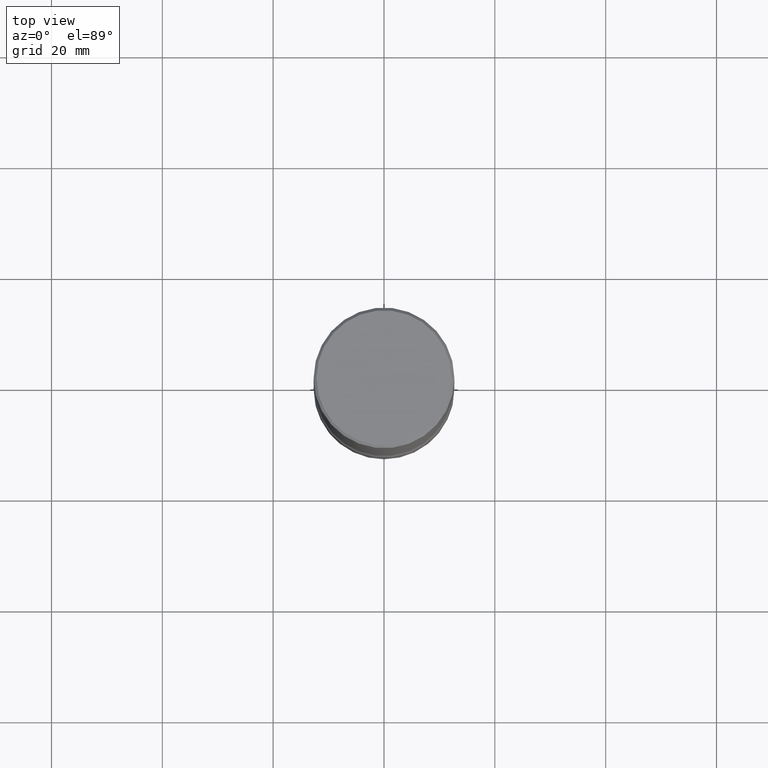
[diagram: clean part render]
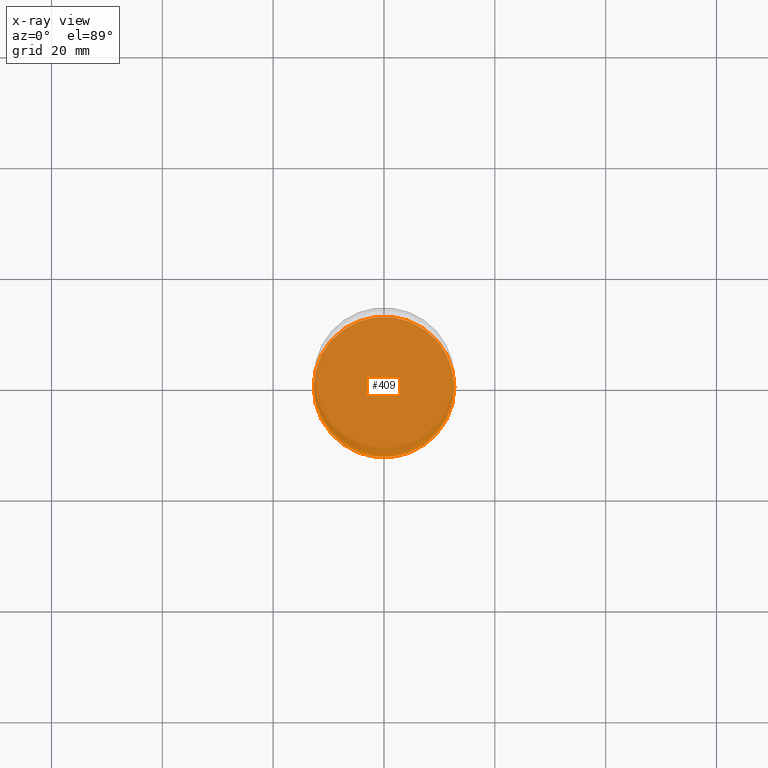
[diagram: x-ray — body ghosted, one internal face saturated and labeled with its STEP entity id]
A machine part, top view, then the same camera in x-ray: the body is ghosted and one INTERNAL B-rep face — a face not visible from any outside direction — is saturated and labeled: STEP entity #409.
In plain terms, the highlighted planar face has unit normal (0, -0, -1).
Its self-contained STEP definition (entity closure, byte-faithful):
#5 = FACE_OUTER_BOUND ( 'NONE', #469, .T. ) ;
#20 = VERTEX_POINT ( 'NONE', #557 ) ;
#65 = AXIS2_PLACEMENT_3D ( 'NONE', #228, #408, #223 ) ;
#98 = AXIS2_PLACEMENT_3D ( 'NONE', #197, #379, #118 ) ;
#101 = DIRECTION ( 'NONE',  ( -1.000000000000000000, 6.982962677686265922E-15, -4.876176775795935793E-29 ) ) ;
#110 = PLANE ( 'NONE',  #271 ) ;
#118 = DIRECTION ( 'NONE',  ( -1.000000000000000000, 6.982962677686265922E-15, 0.000000000000000000 ) ) ;
#187 = DIRECTION ( 'NONE',  ( 2.438088387897960049E-29, -3.491481338843145188E-15, -1.000000000000000000 ) ) ;
#197 = CARTESIAN_POINT ( 'NONE',  ( 9.170508023194262238E-29, -1.309305502066179741E-14, -3.750000000000000000 ) ) ;
#213 = EDGE_CURVE ( 'NONE', #514, #20, #439, .T. ) ;
#223 = DIRECTION ( 'NONE',  ( -1.000000000000000000, 6.982962677686265922E-15, 0.000000000000000000 ) ) ;
#228 = CARTESIAN_POINT ( 'NONE',  ( 9.170508023194262238E-29, -1.309305502066179741E-14, -3.750000000000000000 ) ) ;
#230 = CARTESIAN_POINT ( 'NONE',  ( 3.487989857504376728E-15, 0.4994999999999861773, -3.750000000000001776 ) ) ;
#271 = AXIS2_PLACEMENT_3D ( 'NONE', #230, #187, #101 ) ;
#302 = CARTESIAN_POINT ( 'NONE',  ( -0.4994999999999992779, -9.542033900714521268E-15, -3.750000000000000000 ) ) ;
#314 = CIRCLE ( 'NONE', #65, 0.4994999999999992779 ) ;
#379 = DIRECTION ( 'NONE',  ( 2.445468806185136597E-29, -3.491481338843145583E-15, -1.000000000000000000 ) ) ;
#408 = DIRECTION ( 'NONE',  ( 2.445468806185136597E-29, -3.491481338843145583E-15, -1.000000000000000000 ) ) ;
#409 = ADVANCED_FACE ( 'NONE', ( #5 ), #110, .T. ) ;
#418 = EDGE_CURVE ( 'NONE', #20, #514, #314, .T. ) ;
#427 = ORIENTED_EDGE ( 'NONE', *, *, #213, .T. ) ;
#439 = CIRCLE ( 'NONE', #98, 0.4994999999999992779 ) ;
#469 = EDGE_LOOP ( 'NONE', ( #532, #427 ) ) ;
#514 = VERTEX_POINT ( 'NONE', #302 ) ;
#532 = ORIENTED_EDGE ( 'NONE', *, *, #418, .T. ) ;
#557 = CARTESIAN_POINT ( 'NONE',  ( 0.4994999999999992779, -1.658165776406015835E-14, -3.750000000000000000 ) ) ;